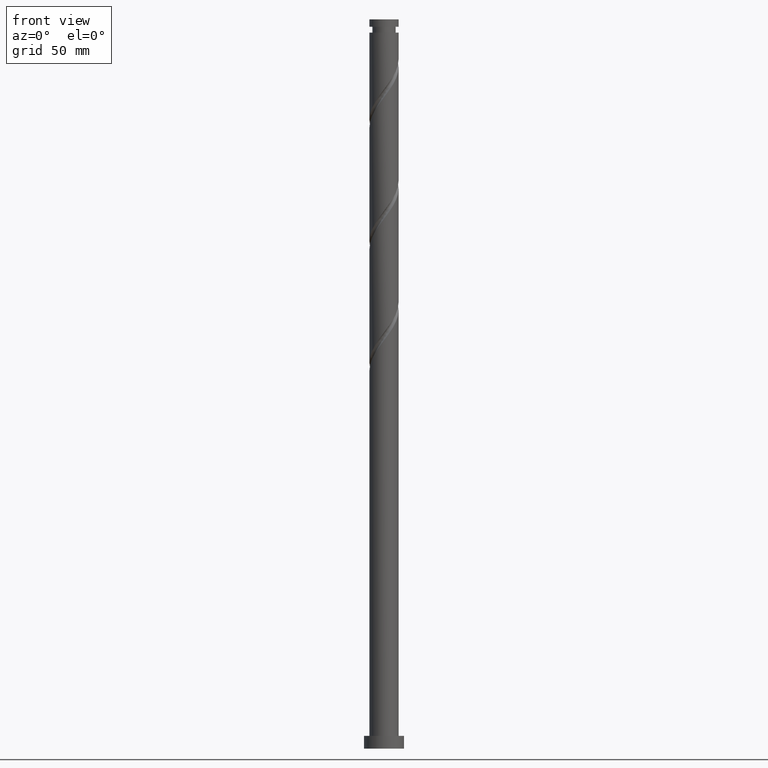
[diagram: clean part render]
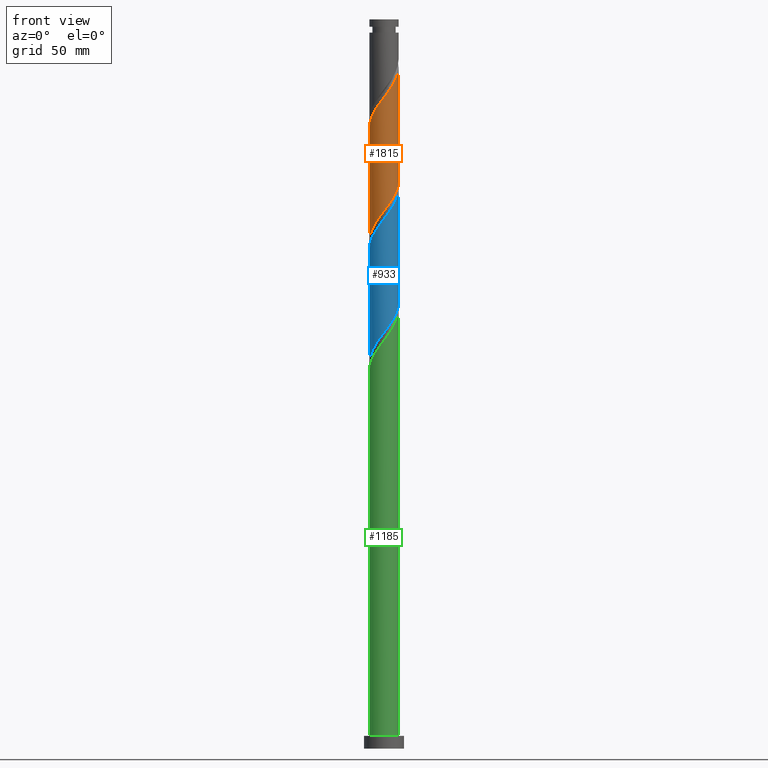
[diagram: same view with three faces highlighted in distinct colors, each labeled with its STEP entity id]
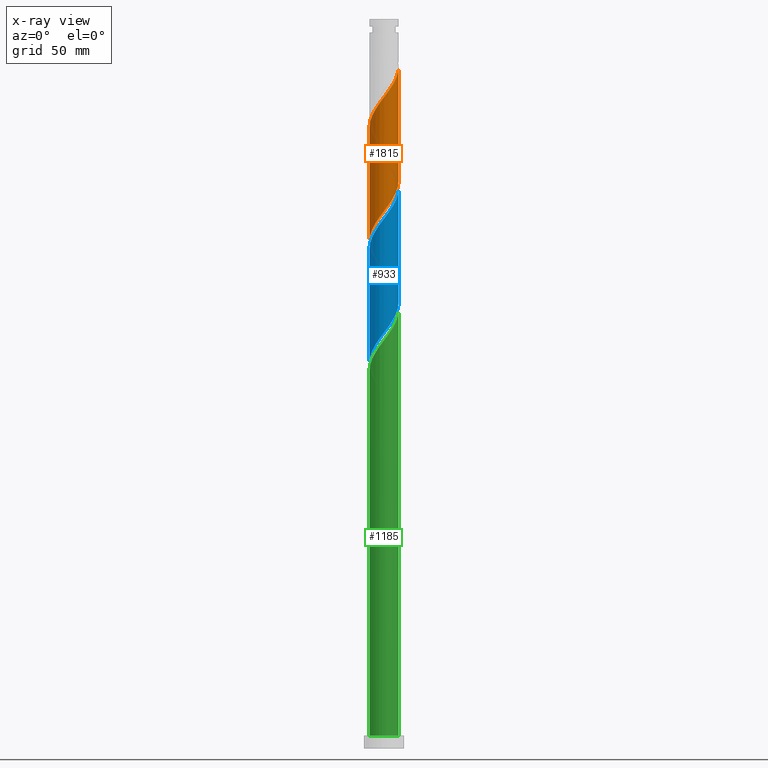
[diagram: x-ray of the same camera — body ghosted, the three highlighted faces saturated]
A machine part, front view with three faces highlighted in distinct colors.
The next image is the same camera in x-ray (body ghosted, the three faces saturated) — at least one of them is partly hidden behind the body in this view.
Their STEP definitions:

[orange] entity #1815 — the highlighted cylindrical surface (edge-blend (fillet) strip) has radius 8 mm, axis along (-0, -0, -1).
#4 = CARTESIAN_POINT ( 'NONE',  ( 8.000000000000007105, -0.4557898995715045642, 373.3517592281696125 ) ) ;
#14 = CARTESIAN_POINT ( 'NONE',  ( -0.9136353689385732224, -7.992013014876460097, 356.0827937810756794 ) ) ;
#45 = CYLINDRICAL_SURFACE ( 'NONE', #612, 8.000000000000000000 ) ;
#51 = DIRECTION ( 'NONE',  ( -0.000000000000000000, -0.000000000000000000, -1.000000000000000000 ) ) ;
#85 = CARTESIAN_POINT ( 'NONE',  ( -3.187218974997030774, -7.337685957127007441, 290.5272382255201933 ) ) ;
#93 = CARTESIAN_POINT ( 'NONE',  ( 8.000000000000000000, 8.311318973889969874E-15, 311.5415703579304818 ) ) ;
#95 = CARTESIAN_POINT ( 'NONE',  ( -4.643161287442606699, -6.514679827803840695, 288.3050160032979647 ) ) ;
#161 = CARTESIAN_POINT ( 'NONE',  ( -7.378103982728164922, -3.204775068141457517, 344.9716826699645935 ) ) ;
#171 = CARTESIAN_POINT ( 'NONE',  ( 6.891497907119741306, -4.062912329372174725, 368.3050160032979079 ) ) ;
#189 = EDGE_CURVE ( 'NONE', #1312, #242, #743, .T. ) ;
#227 = CARTESIAN_POINT ( 'NONE',  ( 1.734469275985935699, -7.809712948032138335, 297.1939048921867652 ) ) ;
#239 = CARTESIAN_POINT ( 'NONE',  ( 7.630644447253058793, -2.402762018928648491, 308.3050160032979079 ) ) ;
#242 = VERTEX_POINT ( 'NONE', #1164 ) ;
#258 = CARTESIAN_POINT ( 'NONE',  ( 0.9136353689385688925, -7.992013014876452104, 296.0827937810757362 ) ) ;
#260 = CARTESIAN_POINT ( 'NONE',  ( -2.415997103853501748, -7.672676170118322148, 291.6383493366311654 ) ) ;
#301 = CARTESIAN_POINT ( 'NONE',  ( -0.07283633702544270450, -7.999668422379072830, 357.1939048921868221 ) ) ;
#310 = CARTESIAN_POINT ( 'NONE',  ( 6.464468613789588147, -4.787237946735002581, 367.1939048921868221 ) ) ;
#322 = CARTESIAN_POINT ( 'NONE',  ( 8.000000000000000000, 9.797174393178825657E-16, 400.0000000000000000 ) ) ;
#355 = VECTOR ( 'NONE', #51, 1000.000000000000000 ) ;
#356 = LINE ( 'NONE', #1937, #355 ) ;
#363 = CARTESIAN_POINT ( 'NONE',  ( 2.555303183033307057, -7.627412881187821903, 298.3050160032979647 ) ) ;
#377 = CARTESIAN_POINT ( 'NONE',  ( -0.7679626948876971948, -8.007323829881674015, 293.8605715588535077 ) ) ;
#388 = CARTESIAN_POINT ( 'NONE',  ( 7.883184911777966875, -1.600748969715830805, 309.4161271144090506 ) ) ;
#391 = VECTOR ( 'NONE', #1710, 1000.000000000000000 ) ;
#401 = CARTESIAN_POINT ( 'NONE',  ( -8.000000000000000000, -0.4557898995714655954, 278.8138283339818599 ) ) ;
#456 = ORIENTED_EDGE ( 'NONE', *, *, #728, .F. ) ;
#457 = CARTESIAN_POINT ( 'NONE',  ( 7.948231931362846225, -0.9086303787922814790, 372.7494604477424218 ) ) ;
#476 = CARTESIAN_POINT ( 'NONE',  ( 8.000000000000010658, -1.584532034590523171E-15, 373.9573505375541345 ) ) ;
#522 = CARTESIAN_POINT ( 'NONE',  ( 8.000000000000000000, 8.311318973889969874E-15, 311.5415703579304818 ) ) ;
#549 = CARTESIAN_POINT ( 'NONE',  ( -6.891497907119731536, -4.062912329372163178, 283.8605715588535645 ) ) ;
#550 = ORIENTED_EDGE ( 'NONE', *, *, #189, .F. ) ;
#598 = CARTESIAN_POINT ( 'NONE',  ( 0.7679626948876913106, -8.007323829881686450, 358.3050160032980216 ) ) ;
#612 = AXIS2_PLACEMENT_3D ( 'NONE', #984, #1738, #1906 ) ;
#622 = CARTESIAN_POINT ( 'NONE',  ( -7.630644447253070339, -2.402762018928644050, 343.8605715588535077 ) ) ;
#630 = EDGE_CURVE ( 'NONE', #1332, #1955, #894, .T. ) ;
#632 = CARTESIAN_POINT ( 'NONE',  ( 4.643161287442608476, -6.514679827803854906, 363.8605715588533940 ) ) ;
#676 = CARTESIAN_POINT ( 'NONE',  ( 6.550564505562183726, -4.668737117872343134, 304.9716826699645935 ) ) ;
#682 = CARTESIAN_POINT ( 'NONE',  ( -5.327881728744660705, -6.026663911471990431, 287.1939048921869357 ) ) ;
#690 = CARTESIAN_POINT ( 'NONE',  ( 8.000000000000000000, -0.3827519942939842656, 311.0330218323665576 ) ) ;
#698 = EDGE_LOOP ( 'NONE', ( #456, #1135, #1757, #550 ) ) ;
#713 = CARTESIAN_POINT ( 'NONE',  ( 3.320297584678855163, -7.278435542695678606, 299.4161271144090506 ) ) ;
#728 = EDGE_CURVE ( 'NONE', #1955, #1312, #1088, .T. ) ;
#743 =( BOUNDED_CURVE ( )  B_SPLINE_CURVE ( 2, ( #93, #690, #1000, #388, #239, #1794, #831, #676, #1625, #1647, #1657, #1489, #713, #363, #227, #258, #1775, #377, #992, #260, #85, #835, #95, #682, #1310, #1014, #549, #1177, #1935, #1189, #1629, #401, #1925 ),
 .UNSPECIFIED., .F., .T. ) 
 B_SPLINE_CURVE_WITH_KNOTS ( ( 3, 2, 2, 2, 2, 2, 2, 2, 2, 2, 2, 2, 2, 2, 2, 2, 3 ),
 ( 0.5545286012773112949, 0.5583333333333333481, 0.5666666666666666519, 0.5749999999999999556, 0.5833333333333333703, 0.5916666666666666741, 0.5999999999999999778, 0.6083333333333332815, 0.6166666666666666963, 0.6250000000000000000, 0.6333333333333333037, 0.6416666666666667185, 0.6500000000000000222, 0.6583333333333333259, 0.6666666666666666297, 0.6750000000000000444, 0.6795286012773114059 ),
 .UNSPECIFIED. ) 
 CURVE ( )  GEOMETRIC_REPRESENTATION_ITEM ( )  RATIONAL_B_SPLINE_CURVE ( ( 0.9066196499552146015, 0.9068171577856272147, 0.9090909090909261581, 0.9041108139711744318, 0.9090909090909261581, 0.9041108139711744318, 0.9090909090909261581, 0.9041108139711744318, 0.9090909090909261581, 0.9041108139711744318, 0.9090909090909261581, 0.9041108139711744318, 0.9090909090909261581, 0.9041108139711744318, 0.9090909090909261581, 0.9041108139711744318, 0.9090909090909261581, 0.9041108139711744318, 0.9090909090909261581, 0.9041108139711744318, 0.9090909090909261581, 0.9041108139711744318, 0.9090909090909261581, 0.9041108139711744318, 0.9090909090909261581, 0.9041108139711744318, 0.9090909090909261581, 0.9041108139711744318, 0.9090909090909261581, 0.9041108139711744318, 0.9090909090909261581, 0.9063845652764733751, 0.9066196499552146015 ) ) 
 REPRESENTATION_ITEM ( '' )  );
#764 = CARTESIAN_POINT ( 'NONE',  ( -6.964334244145181430, -3.936756093006900326, 346.0827937810756794 ) ) ;
#777 = CARTESIAN_POINT ( 'NONE',  ( -7.883184911777977533, -1.600748969715829251, 342.7494604477424787 ) ) ;
#787 = CARTESIAN_POINT ( 'NONE',  ( -8.000000000000010658, -1.195873233653224964E-15, 340.6240172042208769 ) ) ;
#831 = CARTESIAN_POINT ( 'NONE',  ( 6.964334244145168107, -3.936756093006896773, 306.0827937810756794 ) ) ;
#835 = CARTESIAN_POINT ( 'NONE',  ( -3.958440846140554914, -7.002695744135691847, 289.4161271144089369 ) ) ;
#894 =( BOUNDED_CURVE ( )  B_SPLINE_CURVE ( 2, ( #787, #1240, #1880, #777, #622, #161, #764, #906, #1858, #1080, #1702, #1721, #1990, #1870, #1261, #14, #301, #598, #1399, #1555, #1999, #924, #632, #945, #1544, #310, #171, #1530, #1388, #1231, #457, #4, #476 ),
 .UNSPECIFIED., .F., .T. ) 
 B_SPLINE_CURVE_WITH_KNOTS ( ( 3, 2, 2, 2, 2, 2, 2, 2, 2, 2, 2, 2, 2, 2, 2, 2, 3 ),
 ( 0.5545286012773118500, 0.5583333333333333481, 0.5666666666666666519, 0.5749999999999999556, 0.5833333333333332593, 0.5916666666666666741, 0.5999999999999999778, 0.6083333333333333925, 0.6166666666666666963, 0.6250000000000000000, 0.6333333333333333037, 0.6416666666666666075, 0.6500000000000000222, 0.6583333333333333259, 0.6666666666666667407, 0.6750000000000000444, 0.6795286012773110729 ),
 .UNSPECIFIED. ) 
 CURVE ( )  GEOMETRIC_REPRESENTATION_ITEM ( )  RATIONAL_B_SPLINE_CURVE ( ( 0.9066196499552204857, 0.9068171577856334320, 0.9090909090909321533, 0.9041108139711804270, 0.9090909090909321533, 0.9041108139711804270, 0.9090909090909321533, 0.9041108139711804270, 0.9090909090909321533, 0.9041108139711804270, 0.9090909090909321533, 0.9041108139711804270, 0.9090909090909321533, 0.9041108139711804270, 0.9090909090909321533, 0.9041108139711804270, 0.9090909090909321533, 0.9041108139711804270, 0.9090909090909321533, 0.9041108139711804270, 0.9090909090909321533, 0.9041108139711804270, 0.9090909090909321533, 0.9041108139711804270, 0.9090909090909321533, 0.9041108139711804270, 0.9090909090909321533, 0.9041108139711804270, 0.9090909090909321533, 0.9041108139711804270, 0.9090909090909321533, 0.9063845652764795924, 0.9066196499552203747 ) ) 
 REPRESENTATION_ITEM ( '' )  );
#906 = CARTESIAN_POINT ( 'NONE',  ( -6.550564505562197937, -4.668737117872341358, 347.1939048921867652 ) ) ;
#924 = CARTESIAN_POINT ( 'NONE',  ( 3.958440846140559355, -7.002695744135704281, 362.7494604477423081 ) ) ;
#945 = CARTESIAN_POINT ( 'NONE',  ( 5.327881728744664258, -6.026663911472005530, 364.9716826699646504 ) ) ;
#984 = CARTESIAN_POINT ( 'NONE',  ( 0.000000000000000000, 0.000000000000000000, 400.0000000000000000 ) ) ;
#992 = CARTESIAN_POINT ( 'NONE',  ( -1.591979899370598028, -7.839999999999999858, 292.7494604477424787 ) ) ;
#1000 = CARTESIAN_POINT ( 'NONE',  ( 7.963458872121461418, -0.7637557148918400207, 310.5272382255201933 ) ) ;
#1014 = CARTESIAN_POINT ( 'NONE',  ( -6.464468613789581930, -4.787237946734992811, 284.9716826699647072 ) ) ;
#1067 = EDGE_CURVE ( 'NONE', #1332, #242, #356, .T. ) ;
#1080 = CARTESIAN_POINT ( 'NONE',  ( -5.436733926407220530, -5.928652952465931492, 349.4161271144090506 ) ) ;
#1088 = LINE ( 'NONE', #322, #391 ) ;
#1124 = FACE_OUTER_BOUND ( 'NONE', #698, .T. ) ;
#1135 = ORIENTED_EDGE ( 'NONE', *, *, #630, .F. ) ;
#1146 = CARTESIAN_POINT ( 'NONE',  ( -8.000000000000010658, -1.195873233653224964E-15, 340.6240172042208769 ) ) ;
#1164 = CARTESIAN_POINT ( 'NONE',  ( -8.000000000000000000, 1.076285910287909705E-14, 278.2082370245972243 ) ) ;
#1177 = CARTESIAN_POINT ( 'NONE',  ( -7.318527200449881143, -3.338586712009333990, 282.7494604477424218 ) ) ;
#1189 = CARTESIAN_POINT ( 'NONE',  ( -7.852731030260710732, -1.744023217652398428, 280.5272382255201933 ) ) ;
#1231 = CARTESIAN_POINT ( 'NONE',  ( 7.852731030260719614, -1.744023217652409752, 371.6383493366312223 ) ) ;
#1240 = CARTESIAN_POINT ( 'NONE',  ( -8.000000000000007105, -0.3827519942940330600, 341.1325657297850285 ) ) ;
#1261 = CARTESIAN_POINT ( 'NONE',  ( -1.734469275985944581, -7.809712948032144553, 354.9716826699645935 ) ) ;
#1310 = CARTESIAN_POINT ( 'NONE',  ( -5.896175171267119985, -5.406950929103494730, 286.0827937810757930 ) ) ;
#1312 = VERTEX_POINT ( 'NONE', #522 ) ;
#1332 = VERTEX_POINT ( 'NONE', #1146 ) ;
#1388 = CARTESIAN_POINT ( 'NONE',  ( 7.585629115355305707, -2.541304964830876312, 370.5272382255202501 ) ) ;
#1399 = CARTESIAN_POINT ( 'NONE',  ( 1.591979899370596474, -7.840000000000008740, 359.4161271144089937 ) ) ;
#1489 = CARTESIAN_POINT ( 'NONE',  ( 4.085291986324402380, -6.929458204203534422, 300.5272382255201364 ) ) ;
#1530 = CARTESIAN_POINT ( 'NONE',  ( 7.318527200449889136, -3.338586712009342872, 369.4161271144090506 ) ) ;
#1544 = CARTESIAN_POINT ( 'NONE',  ( 5.896175171267126203, -5.406950929103502723, 366.0827937810756225 ) ) ;
#1555 = CARTESIAN_POINT ( 'NONE',  ( 2.415997103853499972, -7.672676170118336358, 360.5272382255201364 ) ) ;
#1625 = CARTESIAN_POINT ( 'NONE',  ( 5.993649215984696355, -5.298695035169131984, 303.8605715588534508 ) ) ;
#1629 = CARTESIAN_POINT ( 'NONE',  ( -7.948231931362837344, -0.9086303787922774822, 279.4161271144091074 ) ) ;
#1647 = CARTESIAN_POINT ( 'NONE',  ( 5.436733926407212536, -5.928652952465924386, 302.7494604477423650 ) ) ;
#1654 = CARTESIAN_POINT ( 'NONE',  ( 8.000000000000010658, -1.584532034590523171E-15, 373.9573505375541345 ) ) ;
#1657 = CARTESIAN_POINT ( 'NONE',  ( 4.761012956365806126, -6.429055578334730292, 301.6383493366312223 ) ) ;
#1702 = CARTESIAN_POINT ( 'NONE',  ( -4.761012956365818560, -6.429055578334735621, 350.5272382255201933 ) ) ;
#1710 = DIRECTION ( 'NONE',  ( -0.000000000000000000, -0.000000000000000000, -1.000000000000000000 ) ) ;
#1721 = CARTESIAN_POINT ( 'NONE',  ( -4.085291986324412150, -6.929458204203545080, 351.6383493366312223 ) ) ;
#1738 = DIRECTION ( 'NONE',  ( -0.000000000000000000, -0.000000000000000000, -1.000000000000000000 ) ) ;
#1757 = ORIENTED_EDGE ( 'NONE', *, *, #1067, .T. ) ;
#1775 = CARTESIAN_POINT ( 'NONE',  ( 0.07283633702543593214, -7.999668422379062172, 294.9716826699645935 ) ) ;
#1794 = CARTESIAN_POINT ( 'NONE',  ( 7.378103982728151600, -3.204775068141457961, 307.1939048921868789 ) ) ;
#1815 = ADVANCED_FACE ( 'NONE', ( #1124 ), #45, .T. ) ;
#1858 = CARTESIAN_POINT ( 'NONE',  ( -5.993649215984709677, -5.298695035169134648, 348.3050160032979079 ) ) ;
#1870 = CARTESIAN_POINT ( 'NONE',  ( -2.555303183033316383, -7.627412881187830784, 353.8605715588534508 ) ) ;
#1880 = CARTESIAN_POINT ( 'NONE',  ( -7.963458872121475629, -0.7637557148918342476, 341.6383493366312791 ) ) ;
#1906 = DIRECTION ( 'NONE',  ( -1.000000000000000000, 0.000000000000000000, 0.000000000000000000 ) ) ;
#1925 = CARTESIAN_POINT ( 'NONE',  ( -8.000000000000000000, 1.076285910287909705E-14, 278.2082370245972243 ) ) ;
#1935 = CARTESIAN_POINT ( 'NONE',  ( -7.585629115355295937, -2.541304964830866098, 281.6383493366313360 ) ) ;
#1937 = CARTESIAN_POINT ( 'NONE',  ( -8.000000000000000000, 0.000000000000000000, 400.0000000000000000 ) ) ;
#1955 = VERTEX_POINT ( 'NONE', #1654 ) ;
#1990 = CARTESIAN_POINT ( 'NONE',  ( -3.320297584678862712, -7.278435542695687488, 352.7494604477424218 ) ) ;
#1999 = CARTESIAN_POINT ( 'NONE',  ( 3.187218974997028553, -7.337685957127018987, 361.6383493366312223 ) ) ;

[blue] entity #933 — the highlighted cylindrical surface (edge-blend (fillet) strip) has radius 8 mm, axis along (-0, -0, -1).
#10 = CARTESIAN_POINT ( 'NONE',  ( -3.187218974997030774, -7.337685957127007441, 223.8605715588535077 ) ) ;
#15 = CARTESIAN_POINT ( 'NONE',  ( 7.852731030260719614, -1.744023217652409752, 304.9716826699645935 ) ) ;
#24 = DIRECTION ( 'NONE',  ( -0.000000000000000000, -0.000000000000000000, -1.000000000000000000 ) ) ;
#41 = VERTEX_POINT ( 'NONE', #1679 ) ;
#65 = DIRECTION ( 'NONE',  ( -0.000000000000000000, -0.000000000000000000, -1.000000000000000000 ) ) ;
#134 = VERTEX_POINT ( 'NONE', #1507 ) ;
#152 = CARTESIAN_POINT ( 'NONE',  ( 3.958440846140559355, -7.002695744135704281, 296.0827937810756225 ) ) ;
#157 = CARTESIAN_POINT ( 'NONE',  ( -3.958440846140554914, -7.002695744135691847, 222.7494604477423650 ) ) ;
#162 = CARTESIAN_POINT ( 'NONE',  ( 5.327881728744664258, -6.026663911472005530, 298.3050160032979079 ) ) ;
#175 = CARTESIAN_POINT ( 'NONE',  ( -8.000000000000000000, -0.4557898995714544932, 212.1471616673151175 ) ) ;
#185 = CARTESIAN_POINT ( 'NONE',  ( 5.436733926407212536, -5.928652952465924386, 236.0827937810757078 ) ) ;
#201 =( BOUNDED_CURVE ( )  B_SPLINE_CURVE ( 2, ( #1065, #892, #1686, #1232, #467, #1891, #633, #968, #1274, #2009, #1860, #1556, #302, #1111, #607, #1545, #1421, #925, #765, #956, #496, #152, #1241, #162, #758, #1881, #1711, #1411, #1389, #15, #1734, #458, #1579 ),
 .UNSPECIFIED., .F., .T. ) 
 B_SPLINE_CURVE_WITH_KNOTS ( ( 3, 2, 2, 2, 2, 2, 2, 2, 2, 2, 2, 2, 2, 2, 2, 2, 3 ),
 ( 0.3045286012773118500, 0.3083333333333333481, 0.3166666666666666519, 0.3249999999999999556, 0.3333333333333333703, 0.3416666666666666741, 0.3499999999999999778, 0.3583333333333332815, 0.3666666666666666963, 0.3750000000000000000, 0.3833333333333333037, 0.3916666666666667185, 0.4000000000000000222, 0.4083333333333333259, 0.4166666666666666297, 0.4250000000000000444, 0.4295286012773117390 ),
 .UNSPECIFIED. ) 
 CURVE ( )  GEOMETRIC_REPRESENTATION_ITEM ( )  RATIONAL_B_SPLINE_CURVE ( ( 0.9066196499552204857, 0.9068171577856334320, 0.9090909090909321533, 0.9041108139711804270, 0.9090909090909321533, 0.9041108139711804270, 0.9090909090909321533, 0.9041108139711804270, 0.9090909090909321533, 0.9041108139711804270, 0.9090909090909321533, 0.9041108139711804270, 0.9090909090909321533, 0.9041108139711804270, 0.9090909090909321533, 0.9041108139711804270, 0.9090909090909321533, 0.9041108139711804270, 0.9090909090909321533, 0.9041108139711804270, 0.9090909090909321533, 0.9041108139711804270, 0.9090909090909321533, 0.9041108139711804270, 0.9090909090909321533, 0.9041108139711804270, 0.9090909090909321533, 0.9041108139711804270, 0.9090909090909321533, 0.9041108139711804270, 0.9090909090909321533, 0.9063845652764791483, 0.9066196499552205967 ) ) 
 REPRESENTATION_ITEM ( '' )  );
#302 = CARTESIAN_POINT ( 'NONE',  ( -3.320297584678862712, -7.278435542695687488, 286.0827937810757362 ) ) ;
#327 = CARTESIAN_POINT ( 'NONE',  ( -4.643161287442606699, -6.514679827803840695, 221.6383493366313076 ) ) ;
#332 = DIRECTION ( 'NONE',  ( -0.000000000000000000, -0.000000000000000000, -1.000000000000000000 ) ) ;
#359 = CARTESIAN_POINT ( 'NONE',  ( -2.415997103853501748, -7.672676170118322148, 224.9716826699646504 ) ) ;
#381 = CARTESIAN_POINT ( 'NONE',  ( 0.000000000000000000, 0.000000000000000000, 400.0000000000000000 ) ) ;
#458 = CARTESIAN_POINT ( 'NONE',  ( 8.000000000000014211, -0.4557898995714377843, 306.6850925615029837 ) ) ;
#467 = CARTESIAN_POINT ( 'NONE',  ( -7.630644447253070339, -2.402762018928644050, 277.1939048921867652 ) ) ;
#472 = CARTESIAN_POINT ( 'NONE',  ( -7.585629115355295937, -2.541304964830866098, 214.9716826699646219 ) ) ;
#496 = CARTESIAN_POINT ( 'NONE',  ( 3.187218974997028553, -7.337685957127018987, 294.9716826699646504 ) ) ;
#501 = CARTESIAN_POINT ( 'NONE',  ( 0.07283633702543593214, -7.999668422379062172, 228.3050160032979647 ) ) ;
#511 = CARTESIAN_POINT ( 'NONE',  ( 8.000000000000000000, 8.311318973889969874E-15, 244.8749036912638530 ) ) ;
#582 = VERTEX_POINT ( 'NONE', #1685 ) ;
#607 = CARTESIAN_POINT ( 'NONE',  ( -1.734469275985944581, -7.809712948032144553, 288.3050160032980216 ) ) ;
#615 = LINE ( 'NONE', #1089, #1694 ) ;
#619 = CARTESIAN_POINT ( 'NONE',  ( 7.630644447253058793, -2.402762018928648491, 241.6383493366312791 ) ) ;
#633 = CARTESIAN_POINT ( 'NONE',  ( -6.964334244145181430, -3.936756093006900326, 279.4161271144089937 ) ) ;
#636 = CARTESIAN_POINT ( 'NONE',  ( -5.896175171267119985, -5.406950929103494730, 219.4161271144090506 ) ) ;
#678 =( BOUNDED_CURVE ( )  B_SPLINE_CURVE ( 2, ( #511, #1114, #1884, #801, #619, #1405, #1257, #1582, #1395, #185, #1427, #1748, #1897, #1570, #2013, #1138, #501, #1760, #1876, #359, #10, #157, #327, #770, #636, #1105, #791, #1246, #472, #1729, #950, #175, #1265 ),
 .UNSPECIFIED., .F., .T. ) 
 B_SPLINE_CURVE_WITH_KNOTS ( ( 3, 2, 2, 2, 2, 2, 2, 2, 2, 2, 2, 2, 2, 2, 2, 2, 3 ),
 ( 0.8045286012773112949, 0.8083333333333333481, 0.8166666666666666519, 0.8249999999999999556, 0.8333333333333333703, 0.8416666666666666741, 0.8499999999999999778, 0.8583333333333332815, 0.8666666666666666963, 0.8750000000000000000, 0.8833333333333333037, 0.8916666666666667185, 0.9000000000000000222, 0.9083333333333333259, 0.9166666666666666297, 0.9250000000000000444, 0.9295286012773115170 ),
 .UNSPECIFIED. ) 
 CURVE ( )  GEOMETRIC_REPRESENTATION_ITEM ( )  RATIONAL_B_SPLINE_CURVE ( ( 0.9066196499552146015, 0.9068171577856272147, 0.9090909090909261581, 0.9041108139711744318, 0.9090909090909261581, 0.9041108139711744318, 0.9090909090909261581, 0.9041108139711744318, 0.9090909090909261581, 0.9041108139711744318, 0.9090909090909261581, 0.9041108139711744318, 0.9090909090909261581, 0.9041108139711744318, 0.9090909090909261581, 0.9041108139711744318, 0.9090909090909261581, 0.9041108139711744318, 0.9090909090909261581, 0.9041108139711744318, 0.9090909090909261581, 0.9041108139711744318, 0.9090909090909261581, 0.9041108139711744318, 0.9090909090909261581, 0.9041108139711744318, 0.9090909090909261581, 0.9041108139711744318, 0.9090909090909261581, 0.9041108139711744318, 0.9090909090909261581, 0.9063845652764732641, 0.9066196499552144905 ) ) 
 REPRESENTATION_ITEM ( '' )  );
#758 = CARTESIAN_POINT ( 'NONE',  ( 5.896175171267126203, -5.406950929103502723, 299.4161271144090506 ) ) ;
#765 = CARTESIAN_POINT ( 'NONE',  ( 1.591979899370596474, -7.840000000000008740, 292.7494604477424787 ) ) ;
#770 = CARTESIAN_POINT ( 'NONE',  ( -5.327881728744660705, -6.026663911471990431, 220.5272382255201080 ) ) ;
#778 = CARTESIAN_POINT ( 'NONE',  ( -8.000000000000010658, -7.145342571078021611E-15, 273.9573505375541913 ) ) ;
#791 = CARTESIAN_POINT ( 'NONE',  ( -6.891497907119731536, -4.062912329372163178, 217.1939048921868505 ) ) ;
#801 = CARTESIAN_POINT ( 'NONE',  ( 7.883184911777966875, -1.600748969715830805, 242.7494604477423934 ) ) ;
#847 = AXIS2_PLACEMENT_3D ( 'NONE', #381, #65, #1903 ) ;
#892 = CARTESIAN_POINT ( 'NONE',  ( -8.000000000000007105, -0.3827519942940330600, 274.4658990631183428 ) ) ;
#925 = CARTESIAN_POINT ( 'NONE',  ( 0.7679626948876913106, -8.007323829881686450, 291.6383493366312791 ) ) ;
#933 = ADVANCED_FACE ( 'NONE', ( #1755 ), #1767, .T. ) ;
#950 = CARTESIAN_POINT ( 'NONE',  ( -7.948231931362837344, -0.9086303787922774822, 212.7494604477424218 ) ) ;
#956 = CARTESIAN_POINT ( 'NONE',  ( 2.415997103853499972, -7.672676170118336358, 293.8605715588535077 ) ) ;
#968 = CARTESIAN_POINT ( 'NONE',  ( -6.550564505562197937, -4.668737117872341358, 280.5272382255201364 ) ) ;
#1019 = ORIENTED_EDGE ( 'NONE', *, *, #1847, .F. ) ;
#1056 = EDGE_LOOP ( 'NONE', ( #1357, #1606, #1350, #1019 ) ) ;
#1065 = CARTESIAN_POINT ( 'NONE',  ( -8.000000000000010658, -7.145342571078021611E-15, 273.9573505375541913 ) ) ;
#1089 = CARTESIAN_POINT ( 'NONE',  ( -8.000000000000000000, 0.000000000000000000, 400.0000000000000000 ) ) ;
#1105 = CARTESIAN_POINT ( 'NONE',  ( -6.464468613789581930, -4.787237946734992811, 218.3050160032979647 ) ) ;
#1111 = CARTESIAN_POINT ( 'NONE',  ( -2.555303183033316383, -7.627412881187830784, 287.1939048921868789 ) ) ;
#1114 = CARTESIAN_POINT ( 'NONE',  ( 8.000000000000000000, -0.3827519942939842656, 244.3663551656998152 ) ) ;
#1138 = CARTESIAN_POINT ( 'NONE',  ( 0.9136353689385688925, -7.992013014876452104, 229.4161271144090506 ) ) ;
#1232 = CARTESIAN_POINT ( 'NONE',  ( -7.883184911777977533, -1.600748969715829251, 276.0827937810757362 ) ) ;
#1241 = CARTESIAN_POINT ( 'NONE',  ( 4.643161287442608476, -6.514679827803854906, 297.1939048921868789 ) ) ;
#1246 = CARTESIAN_POINT ( 'NONE',  ( -7.318527200449881143, -3.338586712009333990, 216.0827937810757078 ) ) ;
#1257 = CARTESIAN_POINT ( 'NONE',  ( 6.964334244145168107, -3.936756093006896773, 239.4161271144089937 ) ) ;
#1265 = CARTESIAN_POINT ( 'NONE',  ( -8.000000000000000000, 1.076285910287909705E-14, 211.5415703579305386 ) ) ;
#1274 = CARTESIAN_POINT ( 'NONE',  ( -5.993649215984709677, -5.298695035169134648, 281.6383493366312223 ) ) ;
#1350 = ORIENTED_EDGE ( 'NONE', *, *, #1492, .T. ) ;
#1357 = ORIENTED_EDGE ( 'NONE', *, *, #1571, .F. ) ;
#1389 = CARTESIAN_POINT ( 'NONE',  ( 7.585629115355305707, -2.541304964830876312, 303.8605715588534508 ) ) ;
#1395 = CARTESIAN_POINT ( 'NONE',  ( 5.993649215984696355, -5.298695035169131984, 237.1939048921868221 ) ) ;
#1405 = CARTESIAN_POINT ( 'NONE',  ( 7.378103982728151600, -3.204775068141457961, 240.5272382255201080 ) ) ;
#1411 = CARTESIAN_POINT ( 'NONE',  ( 7.318527200449889136, -3.338586712009342872, 302.7494604477424218 ) ) ;
#1421 = CARTESIAN_POINT ( 'NONE',  ( -0.07283633702544270450, -7.999668422379072830, 290.5272382255202501 ) ) ;
#1427 = CARTESIAN_POINT ( 'NONE',  ( 4.761012956365806126, -6.429055578334730292, 234.9716826699646219 ) ) ;
#1451 = EDGE_CURVE ( 'NONE', #1491, #582, #201, .T. ) ;
#1491 = VERTEX_POINT ( 'NONE', #778 ) ;
#1492 = EDGE_CURVE ( 'NONE', #1491, #134, #615, .T. ) ;
#1507 = CARTESIAN_POINT ( 'NONE',  ( -8.000000000000000000, 1.076285910287909705E-14, 211.5415703579305386 ) ) ;
#1545 = CARTESIAN_POINT ( 'NONE',  ( -0.9136353689385732224, -7.992013014876460097, 289.4161271144091074 ) ) ;
#1556 = CARTESIAN_POINT ( 'NONE',  ( -4.085291986324412150, -6.929458204203545080, 284.9716826699646504 ) ) ;
#1570 = CARTESIAN_POINT ( 'NONE',  ( 2.555303183033307057, -7.627412881187821903, 231.6383493366312507 ) ) ;
#1571 = EDGE_CURVE ( 'NONE', #582, #41, #1744, .T. ) ;
#1579 = CARTESIAN_POINT ( 'NONE',  ( 8.000000000000010658, 4.454627795358263519E-15, 307.2906838708875625 ) ) ;
#1582 = CARTESIAN_POINT ( 'NONE',  ( 6.550564505562183726, -4.668737117872343134, 238.3050160032979647 ) ) ;
#1606 = ORIENTED_EDGE ( 'NONE', *, *, #1451, .F. ) ;
#1668 = VECTOR ( 'NONE', #24, 1000.000000000000000 ) ;
#1679 = CARTESIAN_POINT ( 'NONE',  ( 8.000000000000000000, 8.311318973889969874E-15, 244.8749036912638530 ) ) ;
#1685 = CARTESIAN_POINT ( 'NONE',  ( 8.000000000000010658, 4.454627795358263519E-15, 307.2906838708875625 ) ) ;
#1686 = CARTESIAN_POINT ( 'NONE',  ( -7.963458872121475629, -0.7637557148918342476, 274.9716826699645935 ) ) ;
#1694 = VECTOR ( 'NONE', #332, 1000.000000000000000 ) ;
#1703 = CARTESIAN_POINT ( 'NONE',  ( 8.000000000000000000, 9.797174393178825657E-16, 400.0000000000000000 ) ) ;
#1711 = CARTESIAN_POINT ( 'NONE',  ( 6.891497907119741306, -4.062912329372174725, 301.6383493366312223 ) ) ;
#1729 = CARTESIAN_POINT ( 'NONE',  ( -7.852731030260710732, -1.744023217652398428, 213.8605715588535077 ) ) ;
#1734 = CARTESIAN_POINT ( 'NONE',  ( 7.948231931362846225, -0.9086303787922814790, 306.0827937810756794 ) ) ;
#1744 = LINE ( 'NONE', #1703, #1668 ) ;
#1748 = CARTESIAN_POINT ( 'NONE',  ( 4.085291986324402380, -6.929458204203534422, 233.8605715588535077 ) ) ;
#1755 = FACE_OUTER_BOUND ( 'NONE', #1056, .T. ) ;
#1760 = CARTESIAN_POINT ( 'NONE',  ( -0.7679626948876971948, -8.007323829881674015, 227.1939048921868221 ) ) ;
#1767 = CYLINDRICAL_SURFACE ( 'NONE', #847, 8.000000000000000000 ) ;
#1847 = EDGE_CURVE ( 'NONE', #41, #134, #678, .T. ) ;
#1860 = CARTESIAN_POINT ( 'NONE',  ( -4.761012956365818560, -6.429055578334735621, 283.8605715588534508 ) ) ;
#1876 = CARTESIAN_POINT ( 'NONE',  ( -1.591979899370598028, -7.839999999999999858, 226.0827937810757646 ) ) ;
#1881 = CARTESIAN_POINT ( 'NONE',  ( 6.464468613789588147, -4.787237946735002581, 300.5272382255201933 ) ) ;
#1884 = CARTESIAN_POINT ( 'NONE',  ( 7.963458872121461418, -0.7637557148918400207, 243.8605715588535077 ) ) ;
#1891 = CARTESIAN_POINT ( 'NONE',  ( -7.378103982728164922, -3.204775068141457517, 278.3050160032979647 ) ) ;
#1897 = CARTESIAN_POINT ( 'NONE',  ( 3.320297584678855163, -7.278435542695678606, 232.7494604477423934 ) ) ;
#1903 = DIRECTION ( 'NONE',  ( -1.000000000000000000, 0.000000000000000000, 0.000000000000000000 ) ) ;
#2009 = CARTESIAN_POINT ( 'NONE',  ( -5.436733926407220530, -5.928652952465931492, 282.7494604477423650 ) ) ;
#2013 = CARTESIAN_POINT ( 'NONE',  ( 1.734469275985935699, -7.809712948032138335, 230.5272382255201933 ) ) ;

[green] entity #1185 — the highlighted cylindrical surface (edge-blend (fillet) strip) has radius 8 mm, axis along (-0, -0, -1).
#38 = CARTESIAN_POINT ( 'NONE',  ( -7.378103982728164922, -3.204775068141457517, 211.6383493366312791 ) ) ;
#68 = VECTOR ( 'NONE', #1099, 1000.000000000000000 ) ;
#109 = CARTESIAN_POINT ( 'NONE',  ( 0.000000000000000000, 0.000000000000000000, 7.000000000000000000 ) ) ;
#168 = CARTESIAN_POINT ( 'NONE',  ( -1.734469275985944581, -7.809712948032144553, 221.6383493366312791 ) ) ;
#187 = CARTESIAN_POINT ( 'NONE',  ( 6.464468613789588147, -4.787237946735002581, 233.8605715588535361 ) ) ;
#194 = CARTESIAN_POINT ( 'NONE',  ( -7.630644447253070339, -2.402762018928644050, 210.5272382255201364 ) ) ;
#232 = CARTESIAN_POINT ( 'NONE',  ( 0.000000000000000000, 0.000000000000000000, 400.0000000000000000 ) ) ;
#281 = EDGE_CURVE ( 'NONE', #905, #665, #584, .T. ) ;
#292 = AXIS2_PLACEMENT_3D ( 'NONE', #232, #1298, #644 ) ;
#361 = CARTESIAN_POINT ( 'NONE',  ( 7.585629115355305707, -2.541304964830876312, 237.1939048921868221 ) ) ;
#390 = ORIENTED_EDGE ( 'NONE', *, *, #281, .T. ) ;
#402 = EDGE_LOOP ( 'NONE', ( #838, #506, #1035, #390 ) ) ;
#473 = CARTESIAN_POINT ( 'NONE',  ( 1.591979899370596474, -7.840000000000008740, 226.0827937810757362 ) ) ;
#503 = CARTESIAN_POINT ( 'NONE',  ( -4.761012956365818560, -6.429055578334735621, 217.1939048921868221 ) ) ;
#506 = ORIENTED_EDGE ( 'NONE', *, *, #1723, .F. ) ;
#584 = CIRCLE ( 'NONE', #744, 8.000000000000000000 ) ;
#588 = VECTOR ( 'NONE', #1262, 1000.000000000000000 ) ;
#614 = CARTESIAN_POINT ( 'NONE',  ( 8.000000000000000000, 9.797174393178825657E-16, 7.000000000000000000 ) ) ;
#623 = CARTESIAN_POINT ( 'NONE',  ( 8.000000000000000000, 9.797174393178825657E-16, 400.0000000000000000 ) ) ;
#628 = CARTESIAN_POINT ( 'NONE',  ( 3.958440846140559355, -7.002695744135704281, 229.4161271144090222 ) ) ;
#637 = CARTESIAN_POINT ( 'NONE',  ( 8.000000000000010658, 4.454627795358263519E-15, 240.6240172042209053 ) ) ;
#644 = DIRECTION ( 'NONE',  ( -1.000000000000000000, 0.000000000000000000, 0.000000000000000000 ) ) ;
#649 = CARTESIAN_POINT ( 'NONE',  ( 8.000000000000012434, -0.4557898995714488866, 240.0184258948362981 ) ) ;
#654 = CARTESIAN_POINT ( 'NONE',  ( -6.964334244145181430, -3.936756093006900326, 212.7494604477423934 ) ) ;
#665 = VERTEX_POINT ( 'NONE', #614 ) ;
#703 = EDGE_CURVE ( 'NONE', #1175, #905, #749, .T. ) ;
#744 = AXIS2_PLACEMENT_3D ( 'NONE', #109, #1191, #1337 ) ;
#749 = LINE ( 'NONE', #1371, #68 ) ;
#783 = CARTESIAN_POINT ( 'NONE',  ( 5.327881728744664258, -6.026663911472005530, 231.6383493366312507 ) ) ;
#798 = CYLINDRICAL_SURFACE ( 'NONE', #292, 8.000000000000000000 ) ;
#803 = CARTESIAN_POINT ( 'NONE',  ( -6.550564505562197937, -4.668737117872341358, 213.8605715588535077 ) ) ;
#809 = CARTESIAN_POINT ( 'NONE',  ( -7.963458872121475629, -0.7637557148918342476, 208.3050160032979363 ) ) ;
#838 = ORIENTED_EDGE ( 'NONE', *, *, #1517, .F. ) ;
#905 = VERTEX_POINT ( 'NONE', #1272 ) ;
#934 = LINE ( 'NONE', #623, #588 ) ;
#940 = CARTESIAN_POINT ( 'NONE',  ( 3.187218974997028553, -7.337685957127018987, 228.3050160032979363 ) ) ;
#974 = CARTESIAN_POINT ( 'NONE',  ( -3.320297584678862712, -7.278435542695687488, 219.4161271144090506 ) ) ;
#1035 = ORIENTED_EDGE ( 'NONE', *, *, #703, .T. ) ;
#1081 = CARTESIAN_POINT ( 'NONE',  ( -8.000000000000010658, -7.145342571078021611E-15, 207.2906838708875910 ) ) ;
#1099 = DIRECTION ( 'NONE',  ( -0.000000000000000000, -0.000000000000000000, -1.000000000000000000 ) ) ;
#1128 = CARTESIAN_POINT ( 'NONE',  ( 7.948231931362846225, -0.9086303787922814790, 239.4161271144090506 ) ) ;
#1175 = VERTEX_POINT ( 'NONE', #1779 ) ;
#1185 = ADVANCED_FACE ( 'NONE', ( #1631 ), #798, .T. ) ;
#1191 = DIRECTION ( 'NONE',  ( 0.000000000000000000, 0.000000000000000000, 1.000000000000000000 ) ) ;
#1258 = CARTESIAN_POINT ( 'NONE',  ( -2.555303183033316383, -7.627412881187830784, 220.5272382255201649 ) ) ;
#1262 = DIRECTION ( 'NONE',  ( -0.000000000000000000, -0.000000000000000000, -1.000000000000000000 ) ) ;
#1272 = CARTESIAN_POINT ( 'NONE',  ( -8.000000000000000000, 0.000000000000000000, 7.000000000000000000 ) ) ;
#1282 = CARTESIAN_POINT ( 'NONE',  ( 7.852731030260719614, -1.744023217652409752, 238.3050160032979647 ) ) ;
#1292 = CARTESIAN_POINT ( 'NONE',  ( 6.891497907119741306, -4.062912329372174725, 234.9716826699646219 ) ) ;
#1298 = DIRECTION ( 'NONE',  ( -0.000000000000000000, -0.000000000000000000, -1.000000000000000000 ) ) ;
#1337 = DIRECTION ( 'NONE',  ( 1.000000000000000000, 0.000000000000000000, 0.000000000000000000 ) ) ;
#1371 = CARTESIAN_POINT ( 'NONE',  ( -8.000000000000000000, 0.000000000000000000, 400.0000000000000000 ) ) ;
#1415 = CARTESIAN_POINT ( 'NONE',  ( 5.896175171267126203, -5.406950929103502723, 232.7494604477423366 ) ) ;
#1430 = CARTESIAN_POINT ( 'NONE',  ( -5.436733926407220530, -5.928652952465931492, 216.0827937810756794 ) ) ;
#1435 = CARTESIAN_POINT ( 'NONE',  ( -7.883184911777977533, -1.600748969715829251, 209.4161271144091074 ) ) ;
#1443 = CARTESIAN_POINT ( 'NONE',  ( -0.07283633702544270450, -7.999668422379072830, 223.8605715588535077 ) ) ;
#1517 = EDGE_CURVE ( 'NONE', #1817, #665, #934, .T. ) ;
#1561 = CARTESIAN_POINT ( 'NONE',  ( 8.000000000000010658, 4.454627795358263519E-15, 240.6240172042209053 ) ) ;
#1563 = CARTESIAN_POINT ( 'NONE',  ( -5.993649215984709677, -5.298695035169134648, 214.9716826699646219 ) ) ;
#1584 = CARTESIAN_POINT ( 'NONE',  ( 2.415997103853499972, -7.672676170118336358, 227.1939048921868221 ) ) ;
#1589 = CARTESIAN_POINT ( 'NONE',  ( -8.000000000000010658, -0.3827519942940086350, 207.7992323964516004 ) ) ;
#1631 = FACE_OUTER_BOUND ( 'NONE', #402, .T. ) ;
#1723 = EDGE_CURVE ( 'NONE', #1175, #1817, #1872, .T. ) ;
#1740 = CARTESIAN_POINT ( 'NONE',  ( 7.318527200449889136, -3.338586712009342872, 236.0827937810756794 ) ) ;
#1750 = CARTESIAN_POINT ( 'NONE',  ( 4.643161287442608476, -6.514679827803854906, 230.5272382255201933 ) ) ;
#1762 = CARTESIAN_POINT ( 'NONE',  ( 0.7679626948876913106, -8.007323829881686450, 224.9716826699646219 ) ) ;
#1779 = CARTESIAN_POINT ( 'NONE',  ( -8.000000000000010658, -7.145342571078021611E-15, 207.2906838708875910 ) ) ;
#1817 = VERTEX_POINT ( 'NONE', #1561 ) ;
#1866 = CARTESIAN_POINT ( 'NONE',  ( -4.085291986324412150, -6.929458204203545080, 218.3050160032979363 ) ) ;
#1872 =( BOUNDED_CURVE ( )  B_SPLINE_CURVE ( 2, ( #1081, #1589, #809, #1435, #194, #38, #654, #803, #1563, #1430, #503, #1866, #974, #1258, #168, #1908, #1443, #1762, #473, #1584, #940, #628, #1750, #783, #1415, #187, #1292, #1740, #361, #1282, #1128, #649, #637 ),
 .UNSPECIFIED., .F., .T. ) 
 B_SPLINE_CURVE_WITH_KNOTS ( ( 3, 2, 2, 2, 2, 2, 2, 2, 2, 2, 2, 2, 2, 2, 2, 2, 3 ),
 ( 0.05452860127731160717, 0.05833333333333334814, 0.06666666666666665186, 0.07499999999999995559, 0.08333333333333337034, 0.09166666666666667407, 0.09999999999999997780, 0.1083333333333332815, 0.1166666666666666963, 0.1250000000000000000, 0.1333333333333333037, 0.1416666666666667185, 0.1500000000000000222, 0.1583333333333333259, 0.1666666666666666297, 0.1750000000000000444, 0.1795286012773116280 ),
 .UNSPECIFIED. ) 
 CURVE ( )  GEOMETRIC_REPRESENTATION_ITEM ( )  RATIONAL_B_SPLINE_CURVE ( ( 0.9066196499552205967, 0.9068171577856333210, 0.9090909090909321533, 0.9041108139711804270, 0.9090909090909321533, 0.9041108139711804270, 0.9090909090909321533, 0.9041108139711804270, 0.9090909090909321533, 0.9041108139711804270, 0.9090909090909321533, 0.9041108139711804270, 0.9090909090909321533, 0.9041108139711804270, 0.9090909090909321533, 0.9041108139711804270, 0.9090909090909321533, 0.9041108139711804270, 0.9090909090909321533, 0.9041108139711804270, 0.9090909090909321533, 0.9041108139711804270, 0.9090909090909321533, 0.9041108139711804270, 0.9090909090909321533, 0.9041108139711804270, 0.9090909090909321533, 0.9041108139711804270, 0.9090909090909321533, 0.9041108139711804270, 0.9090909090909321533, 0.9063845652764792593, 0.9066196499552205967 ) ) 
 REPRESENTATION_ITEM ( '' )  );
#1908 = CARTESIAN_POINT ( 'NONE',  ( -0.9136353689385732224, -7.992013014876460097, 222.7494604477423650 ) ) ;